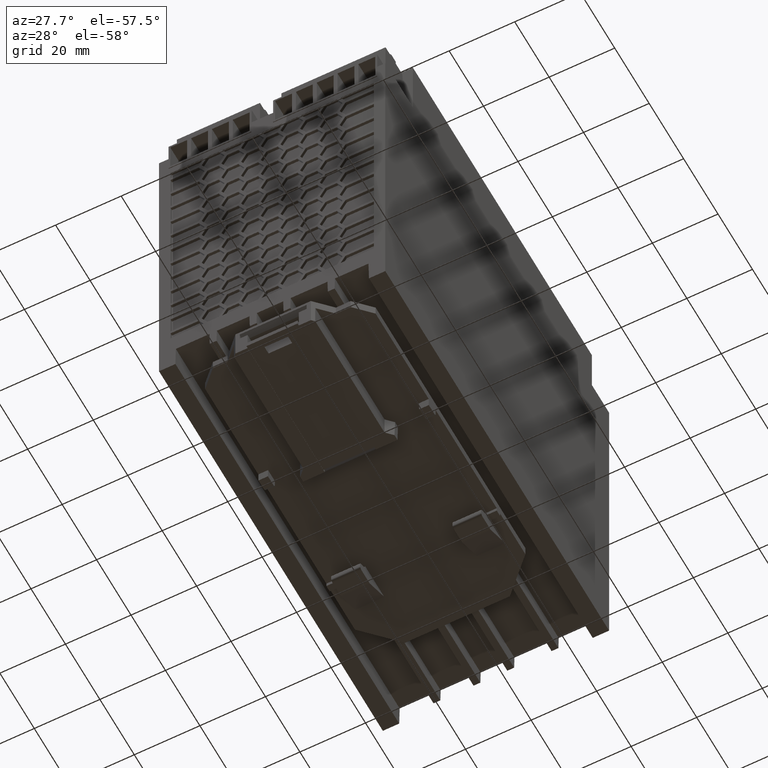
[diagram: clean part render]
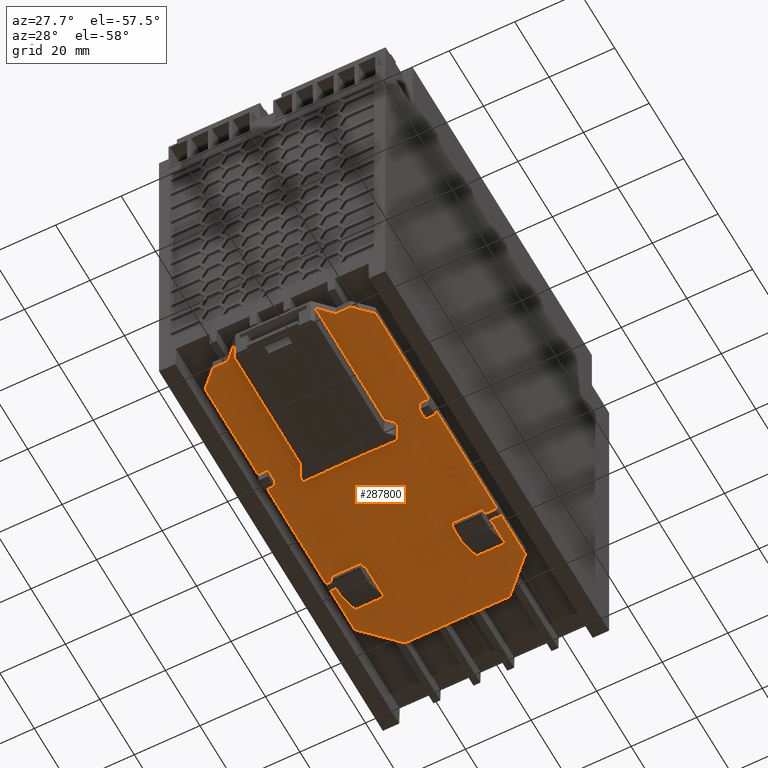
[diagram: same view with one face highlighted and labeled with its STEP entity id]
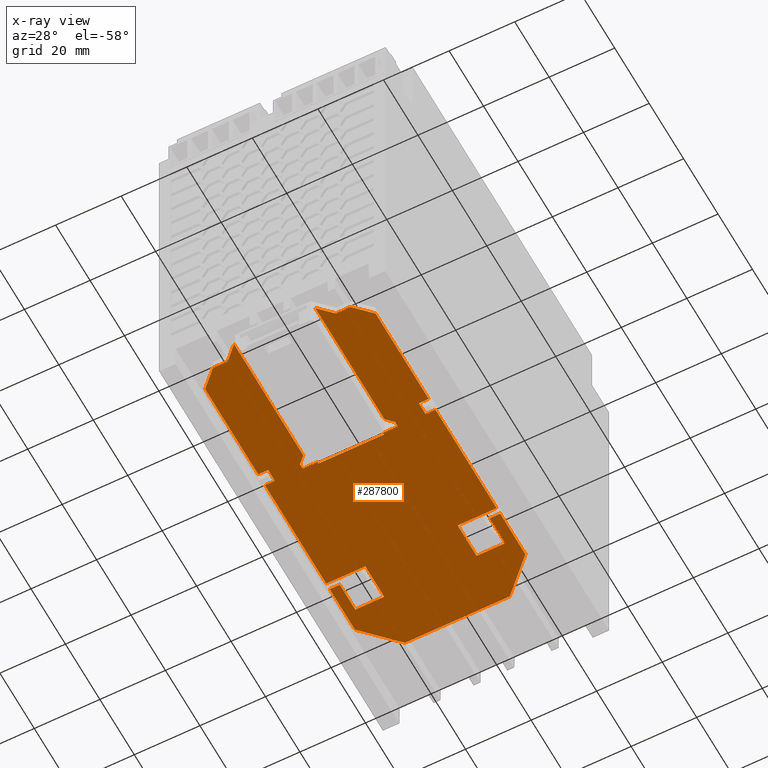
[diagram: x-ray of the same camera — body ghosted, the highlighted face saturated]
A machine part, auxiliary view. The second image highlights one B-rep face of the part: STEP entity #287800.
The next image is the same camera in x-ray: the body ghosted, the highlighted face saturated — about 0% of this face is hidden behind the body in this view.
In plain terms, the highlighted planar face has unit normal (0, 0, -1).
Its self-contained STEP definition (entity closure, byte-faithful):
#283920=CARTESIAN_POINT('',(-30.9067623437389,-56.5017569058464,
153.965843060292));
#283930=DIRECTION('',(0.,-1.,0.));
#283940=DIRECTION('',(-5.73515424626205E-20,0.,1.));
#283950=AXIS2_PLACEMENT_3D('',#283920,#283930,#283940);
#283960=PLANE('',#283950);
#284250=CARTESIAN_POINT('',(11.8911733980513,-56.5017569058464,
174.240843060292));
#284260=VERTEX_POINT('',#284250);
#284310=CARTESIAN_POINT('',(-72.2080416875504,-56.5017569058464,
174.240843060292));
#284320=DIRECTION('',(1.,0.,0.));
#284330=VECTOR('',#284320,1.);
#284340=LINE('',#284310,#284330);
#284350=CARTESIAN_POINT('',(13.5282511469976,-56.5017569058464,
174.240843060292));
#284360=VERTEX_POINT('',#284350);
#284370=EDGE_CURVE('',#284260,#284360,#284340,.T.);
#284630=CARTESIAN_POINT('',(-23.6088266019488,-56.5017569058464,
135.090843060292));
#284640=DIRECTION('',(-5.73515424626205E-20,0.,1.));
#284650=VECTOR('',#284640,1.);
#284660=LINE('',#284630,#284650);
#284670=CARTESIAN_POINT('',(-23.6088266019488,-56.5017569058464,
133.740843060292));
#284680=VERTEX_POINT('',#284670);
#284690=CARTESIAN_POINT('',(-23.6088266019488,-56.5017569058464,
145.65356773565));
#284700=VERTEX_POINT('',#284690);
#284710=EDGE_CURVE('',#284680,#284700,#284660,.T.);
#284720=ORIENTED_EDGE('',*,*,#284710,.F.);
#284730=CARTESIAN_POINT('',(-46.5603591758107,-56.5017569058464,
145.65356773565));
#284740=DIRECTION('',(-1.,0.,0.));
#284750=VECTOR('',#284740,1.);
#284760=LINE('',#284730,#284750);
#284770=CARTESIAN_POINT('',(-34.6088266019491,-56.5017569058464,
145.65356773565));
#284780=VERTEX_POINT('',#284770);
#284790=EDGE_CURVE('',#284700,#284780,#284760,.T.);
#284800=ORIENTED_EDGE('',*,*,#284790,.F.);
#284810=CARTESIAN_POINT('',(-34.6088266019491,-56.5017569058464,
135.090843060292));
#284820=DIRECTION('',(-5.73515424626205E-20,0.,1.));
#284830=VECTOR('',#284820,1.);
#284840=LINE('',#284810,#284830);
#284850=CARTESIAN_POINT('',(-34.608826601949,-56.5017569058464,
136.924343247015));
#284860=VERTEX_POINT('',#284850);
#284870=EDGE_CURVE('',#284860,#284780,#284840,.T.);
#284880=ORIENTED_EDGE('',*,*,#284870,.T.);
#284890=CARTESIAN_POINT('',(-46.5603591758106,-56.5017569058464,
136.924343247015));
#284900=DIRECTION('',(-1.,0.,0.));
#284910=VECTOR('',#284900,1.);
#284920=LINE('',#284890,#284910);
#284930=CARTESIAN_POINT('',(-25.6088266019486,-56.5017569058464,
136.924343247015));
#284940=VERTEX_POINT('',#284930);
#284950=EDGE_CURVE('',#284940,#284860,#284920,.T.);
#284960=ORIENTED_EDGE('',*,*,#284950,.T.);
#284970=CARTESIAN_POINT('',(-25.6088266019486,-56.5017569058464,
135.090843060292));
#284980=DIRECTION('',(5.73515424626205E-20,-0.,-1.));
#284990=VECTOR('',#284980,1.);
#285000=LINE('',#284970,#284990);
#285010=CARTESIAN_POINT('',(-25.6088266019486,-56.5017569058464,
133.740843060292));
#285020=VERTEX_POINT('',#285010);
#285030=EDGE_CURVE('',#284940,#285020,#285000,.T.);
#285040=ORIENTED_EDGE('',*,*,#285030,.F.);
#285050=CARTESIAN_POINT('',(-72.2080416875504,-56.5017569058464,
133.740843060292));
#285060=DIRECTION('',(1.,0.,0.));
#285070=VECTOR('',#285060,1.);
#285080=LINE('',#285050,#285070);
#285090=CARTESIAN_POINT('',(-40.2588266019494,-56.5017569058464,
133.740843060292));
#285100=VERTEX_POINT('',#285090);
#285110=EDGE_CURVE('',#285100,#285020,#285080,.T.);
#285120=ORIENTED_EDGE('',*,*,#285110,.T.);
#285130=CARTESIAN_POINT('',(-72.2080416875504,-56.5017569058464,
165.690058145892));
#285140=DIRECTION('',(0.707106781186554,-0.,-0.707106781186541));
#285150=VECTOR('',#285140,1.);
#285160=LINE('',#285130,#285150);
#285170=CARTESIAN_POINT('',(-50.2588266019489,-56.5017569058464,
143.740843060291));
#285180=VERTEX_POINT('',#285170);
#285190=EDGE_CURVE('',#285180,#285100,#285160,.T.);
#285200=ORIENTED_EDGE('',*,*,#285190,.T.);
#285210=CARTESIAN_POINT('',(-50.258826601949,-56.5017569058464,
194.740843060292));
#285220=DIRECTION('',(5.73515424626205E-20,-0.,-1.));
#285230=VECTOR('',#285220,1.);
#285240=LINE('',#285210,#285230);
#285250=CARTESIAN_POINT('',(-50.2588266019489,-56.5017569058464,
175.740843060292));
#285260=VERTEX_POINT('',#285250);
#285270=EDGE_CURVE('',#285260,#285180,#285240,.T.);
#285280=ORIENTED_EDGE('',*,*,#285270,.T.);
#285290=CARTESIAN_POINT('',(-72.2080416875504,-56.5017569058464,
153.791627974691));
#285300=DIRECTION('',(0.707106781186554,0.,0.707106781186541));
#285310=VECTOR('',#285300,1.);
#285320=LINE('',#285290,#285310);
#285330=CARTESIAN_POINT('',(-40.2588266019492,-56.5017569058464,
185.740843060292));
#285340=VERTEX_POINT('',#285330);
#285350=EDGE_CURVE('',#285260,#285340,#285320,.T.);
#285360=ORIENTED_EDGE('',*,*,#285350,.F.);
#285370=CARTESIAN_POINT('',(-16.6,-56.5017569058464,185.740843060292));
#285380=DIRECTION('',(-1.,2.76830659470822E-38,-5.73515424626205E-20));
#285390=VECTOR('',#285380,1.);
#285400=LINE('',#285370,#285390);
#285410=CARTESIAN_POINT('',(-25.6088266019486,-56.5017569058464,
185.740843060292));
#285420=VERTEX_POINT('',#285410);
#285430=EDGE_CURVE('',#285420,#285340,#285400,.T.);
#285440=ORIENTED_EDGE('',*,*,#285430,.T.);
#285450=CARTESIAN_POINT('',(-25.6088266019486,-56.5017569058464,
135.090843060292));
#285460=DIRECTION('',(5.73515424626205E-20,-0.,-1.));
#285470=VECTOR('',#285460,1.);
#285480=LINE('',#285450,#285470);
#285490=CARTESIAN_POINT('',(-25.6088266019486,-56.5017569058464,
182.653567735651));
#285500=VERTEX_POINT('',#285490);
#285510=EDGE_CURVE('',#285420,#285500,#285480,.T.);
#285520=ORIENTED_EDGE('',*,*,#285510,.F.);
#285530=CARTESIAN_POINT('',(-46.5603591758106,-56.5017569058464,
182.653567735651));
#285540=DIRECTION('',(-1.,0.,0.));
#285550=VECTOR('',#285540,1.);
#285560=LINE('',#285530,#285550);
#285570=CARTESIAN_POINT('',(-34.608826601949,-56.5017569058464,
182.653567735651));
#285580=VERTEX_POINT('',#285570);
#285590=EDGE_CURVE('',#285500,#285580,#285560,.T.);
#285600=ORIENTED_EDGE('',*,*,#285590,.F.);
#285610=CARTESIAN_POINT('',(-34.6088266019491,-56.5017569058464,
135.090843060292));
#285620=DIRECTION('',(-5.73515424626205E-20,0.,1.));
#285630=VECTOR('',#285620,1.);
#285640=LINE('',#285610,#285630);
#285650=CARTESIAN_POINT('',(-34.6088266019491,-56.5017569058464,
173.828118384933));
#285660=VERTEX_POINT('',#285650);
#285670=EDGE_CURVE('',#285660,#285580,#285640,.T.);
#285680=ORIENTED_EDGE('',*,*,#285670,.T.);
#285690=CARTESIAN_POINT('',(-46.5603591758107,-56.5017569058464,
173.828118384933));
#285700=DIRECTION('',(-1.,0.,0.));
#285710=VECTOR('',#285700,1.);
#285720=LINE('',#285690,#285710);
#285730=CARTESIAN_POINT('',(-23.6088266019488,-56.5017569058464,
173.828118384933));
#285740=VERTEX_POINT('',#285730);
#285750=EDGE_CURVE('',#285740,#285660,#285720,.T.);
#285760=ORIENTED_EDGE('',*,*,#285750,.T.);
#285770=CARTESIAN_POINT('',(-23.6088266019488,-56.5017569058464,
135.090843060292));
#285780=DIRECTION('',(5.73515424626205E-20,-0.,-1.));
#285790=VECTOR('',#285780,1.);
#285800=LINE('',#285770,#285790);
#285810=CARTESIAN_POINT('',(-23.6088266019488,-56.5017569058464,
185.740843060292));
#285820=VERTEX_POINT('',#285810);
#285830=EDGE_CURVE('',#285820,#285740,#285800,.T.);
#285840=ORIENTED_EDGE('',*,*,#285830,.T.);
#285850=CARTESIAN_POINT('',(11.8911733980513,-56.5017569058464,
185.740843060292));
#285860=VERTEX_POINT('',#285850);
#285870=EDGE_CURVE('',#285860,#285820,#285400,.T.);
#285880=ORIENTED_EDGE('',*,*,#285870,.T.);
#285890=CARTESIAN_POINT('',(11.8911733980514,-56.5017569058464,
124.740843060292));
#285900=DIRECTION('',(5.73515424626205E-20,-0.,-1.));
#285910=VECTOR('',#285900,1.);
#285920=LINE('',#285890,#285910);
#285930=CARTESIAN_POINT('',(11.8911733980513,-56.5017569058464,
182.740843060292));
#285940=VERTEX_POINT('',#285930);
#285950=EDGE_CURVE('',#285860,#285940,#285920,.T.);
#285960=ORIENTED_EDGE('',*,*,#285950,.F.);
#285970=CARTESIAN_POINT('',(-72.2080416875504,-56.5017569058464,
182.740843060292));
#285980=DIRECTION('',(-1.,0.,0.));
#285990=VECTOR('',#285980,1.);
#286000=LINE('',#285970,#285990);
#286010=CARTESIAN_POINT('',(15.8911733980512,-56.5017569058464,
182.740843060292));
#286020=VERTEX_POINT('',#286010);
#286030=EDGE_CURVE('',#286020,#285940,#286000,.T.);
#286040=ORIENTED_EDGE('',*,*,#286030,.T.);
#286050=CARTESIAN_POINT('',(15.9088394144973,-56.5017569058464,
124.740843060292));
#286060=DIRECTION('',(-0.000304586476321232,0.,0.999999953613538));
#286070=VECTOR('',#286060,1.);
#286080=LINE('',#286050,#286070);
#286090=CARTESIAN_POINT('',(15.8902596385798,-56.5017569058464,
185.740843060292));
#286100=VERTEX_POINT('',#286090);
#286110=EDGE_CURVE('',#286020,#286100,#286080,.T.);
#286120=ORIENTED_EDGE('',*,*,#286110,.F.);
#286130=CARTESIAN_POINT('',(46.7411733980517,-56.5017569058464,
185.740843060292));
#286140=VERTEX_POINT('',#286130);
#286150=EDGE_CURVE('',#286140,#286100,#285400,.T.);
#286160=ORIENTED_EDGE('',*,*,#286150,.T.);
#286170=CARTESIAN_POINT('',(107.741173398048,-56.5017569058464,
124.740843060292));
#286180=DIRECTION('',(0.707106781186529,-0.,-0.707106781186566));
#286190=VECTOR('',#286180,1.);
#286200=LINE('',#286170,#286190);
#286210=CARTESIAN_POINT('',(51.741173398051,-56.5017569058464,
180.740843060292));
#286220=VERTEX_POINT('',#286210);
#286230=EDGE_CURVE('',#286140,#286220,#286200,.T.);
#286240=ORIENTED_EDGE('',*,*,#286230,.F.);
#286250=CARTESIAN_POINT('',(51.741173398051,-56.5017569058464,
124.740843060292));
#286260=DIRECTION('',(5.73515424626205E-20,-0.,-1.));
#286270=VECTOR('',#286260,1.);
#286280=LINE('',#286250,#286270);
#286290=CARTESIAN_POINT('',(51.741173398051,-56.5017569058464,
176.240843060292));
#286300=VERTEX_POINT('',#286290);
#286310=EDGE_CURVE('',#286220,#286300,#286280,.T.);
#286320=ORIENTED_EDGE('',*,*,#286310,.F.);
#286330=CARTESIAN_POINT('',(103.241173398049,-56.5017569058464,
124.740843060292));
#286340=DIRECTION('',(0.707106781186535,-0.,-0.70710678118656));
#286350=VECTOR('',#286340,1.);
#286360=LINE('',#286330,#286350);
#286370=CARTESIAN_POINT('',(55.8563768265773,-56.5017569058464,
172.125639631765));
#286380=VERTEX_POINT('',#286370);
#286390=EDGE_CURVE('',#286300,#286380,#286360,.T.);
#286400=ORIENTED_EDGE('',*,*,#286390,.F.);
#286410=CARTESIAN_POINT('',(-72.2080416875504,-56.5017569058464,
172.125639631765));
#286420=DIRECTION('',(-1.,0.,0.));
#286430=VECTOR('',#286420,1.);
#286440=LINE('',#286410,#286430);
#286450=CARTESIAN_POINT('',(15.6434545755242,-56.5017569058464,
172.125639631765));
#286460=VERTEX_POINT('',#286450);
#286470=EDGE_CURVE('',#286380,#286460,#286440,.T.);
#286480=ORIENTED_EDGE('',*,*,#286470,.F.);
#286490=CARTESIAN_POINT('',(-72.2080416875504,-56.5017569058464,
259.977135894829));
#286500=DIRECTION('',(-0.707106781186593,0.,0.707106781186502));
#286510=VECTOR('',#286500,1.);
#286520=LINE('',#286490,#286510);
#286530=EDGE_CURVE('',#286460,#284360,#286520,.T.);
#286540=ORIENTED_EDGE('',*,*,#286530,.F.);
#286550=ORIENTED_EDGE('',*,*,#284370,.T.);
#286560=CARTESIAN_POINT('',(11.8911733980513,-56.5017569058464,
124.740843060292));
#286570=DIRECTION('',(-5.73515424626205E-20,0.,1.));
#286580=VECTOR('',#286570,1.);
#286590=LINE('',#286560,#286580);
#286600=CARTESIAN_POINT('',(11.8911733980513,-56.5017569058464,
169.740843060292));
#286610=VERTEX_POINT('',#286600);
#286620=EDGE_CURVE('',#286610,#284260,#286590,.T.);
#286630=ORIENTED_EDGE('',*,*,#286620,.T.);
#286640=CARTESIAN_POINT('',(-72.2080416875504,-56.5017569058464,
169.740843060292));
#286650=DIRECTION('',(-1.,0.,0.));
#286660=VECTOR('',#286650,1.);
#286670=LINE('',#286640,#286660);
#286680=CARTESIAN_POINT('',(11.3911733980511,-56.5017569058464,
169.740843060292));
#286690=VERTEX_POINT('',#286680);
#286700=EDGE_CURVE('',#286610,#286690,#286670,.T.);
#286710=ORIENTED_EDGE('',*,*,#286700,.F.);
#286720=CARTESIAN_POINT('',(11.3911733980511,-56.5017569058464,
181.040843060292));
#286730=DIRECTION('',(5.73515424626205E-20,-0.,-1.));
#286740=VECTOR('',#286730,1.);
#286750=LINE('',#286720,#286740);
#286760=CARTESIAN_POINT('',(11.3911733980511,-56.5017569058464,
149.740843060292));
#286770=VERTEX_POINT('',#286760);
#286780=EDGE_CURVE('',#286690,#286770,#286750,.T.);
#286790=ORIENTED_EDGE('',*,*,#286780,.F.);
#286800=CARTESIAN_POINT('',(-72.2080416875504,-56.5017569058464,
149.740843060292));
#286810=DIRECTION('',(-1.,0.,0.));
#286820=VECTOR('',#286810,1.);
#286830=LINE('',#286800,#286820);
#286840=CARTESIAN_POINT('',(11.8911733980513,-56.5017569058464,
149.740843060292));
#286850=VERTEX_POINT('',#286840);
#286860=EDGE_CURVE('',#286850,#286770,#286830,.T.);
#286870=ORIENTED_EDGE('',*,*,#286860,.T.);
#286880=CARTESIAN_POINT('',(11.8911733980513,-56.5017569058464,
194.740843060292));
#286890=DIRECTION('',(5.73515424626205E-20,-0.,-1.));
#286900=VECTOR('',#286890,1.);
#286910=LINE('',#286880,#286900);
#286920=CARTESIAN_POINT('',(11.8911733980513,-56.5017569058464,
145.240843060291));
#286930=VERTEX_POINT('',#286920);
#286940=EDGE_CURVE('',#286850,#286930,#286910,.T.);
#286950=ORIENTED_EDGE('',*,*,#286940,.F.);
#286960=CARTESIAN_POINT('',(-72.2080416875504,-56.5017569058464,
145.240843060291));
#286970=DIRECTION('',(1.,0.,0.));
#286980=VECTOR('',#286970,1.);
#286990=LINE('',#286960,#286980);
#287000=CARTESIAN_POINT('',(13.5282511469976,-56.5017569058464,
145.240843060291));
#287010=VERTEX_POINT('',#287000);
#287020=EDGE_CURVE('',#286930,#287010,#286990,.T.);
#287030=ORIENTED_EDGE('',*,*,#287020,.F.);
#287040=CARTESIAN_POINT('',(-72.2080416875504,-56.5017569058464,
59.5045502257543));
#287050=DIRECTION('',(-0.707106781186593,0.,-0.707106781186502));
#287060=VECTOR('',#287050,1.);
#287070=LINE('',#287040,#287060);
#287080=CARTESIAN_POINT('',(15.6434545755243,-56.5017569058464,
147.356046488818));
#287090=VERTEX_POINT('',#287080);
#287100=EDGE_CURVE('',#287090,#287010,#287070,.T.);
#287110=ORIENTED_EDGE('',*,*,#287100,.T.);
#287120=CARTESIAN_POINT('',(-72.2080416875504,-56.5017569058464,
147.356046488818));
#287130=DIRECTION('',(-1.,0.,0.));
#287140=VECTOR('',#287130,1.);
#287150=LINE('',#287120,#287140);
#287160=CARTESIAN_POINT('',(55.8563768265773,-56.5017569058464,
147.356046488818));
#287170=VERTEX_POINT('',#287160);
#287180=EDGE_CURVE('',#287170,#287090,#287150,.T.);
#287190=ORIENTED_EDGE('',*,*,#287180,.T.);
#287200=CARTESIAN_POINT('',(103.241173398049,-56.5017569058464,
194.740843060292));
#287210=DIRECTION('',(0.707106781186535,0.,0.70710678118656));
#287220=VECTOR('',#287210,1.);
#287230=LINE('',#287200,#287220);
#287240=CARTESIAN_POINT('',(51.741173398051,-56.5017569058464,
143.240843060291));
#287250=VERTEX_POINT('',#287240);
#287260=EDGE_CURVE('',#287250,#287170,#287230,.T.);
#287270=ORIENTED_EDGE('',*,*,#287260,.T.);
#287280=CARTESIAN_POINT('',(51.741173398051,-56.5017569058464,
194.740843060292));
#287290=DIRECTION('',(-5.73515424626205E-20,0.,1.));
#287300=VECTOR('',#287290,1.);
#287310=LINE('',#287280,#287300);
#287320=CARTESIAN_POINT('',(51.741173398051,-56.5017569058464,
138.740843060291));
#287330=VERTEX_POINT('',#287320);
#287340=EDGE_CURVE('',#287330,#287250,#287310,.T.);
#287350=ORIENTED_EDGE('',*,*,#287340,.T.);
#287360=CARTESIAN_POINT('',(107.741173398048,-56.5017569058464,
194.740843060292));
#287370=DIRECTION('',(0.707106781186529,0.,0.707106781186566));
#287380=VECTOR('',#287370,1.);
#287390=LINE('',#287360,#287380);
#287400=CARTESIAN_POINT('',(46.7411733980517,-56.5017569058464,
133.740843060292));
#287410=VERTEX_POINT('',#287400);
#287420=EDGE_CURVE('',#287410,#287330,#287390,.T.);
#287430=ORIENTED_EDGE('',*,*,#287420,.T.);
#287440=CARTESIAN_POINT('',(-72.2080416875504,-56.5017569058464,
133.740843060292));
#287450=DIRECTION('',(1.,0.,0.));
#287460=VECTOR('',#287450,1.);
#287470=LINE('',#287440,#287460);
#287480=CARTESIAN_POINT('',(15.8902596385798,-56.5017569058464,
133.740843060292));
#287490=VERTEX_POINT('',#287480);
#287500=EDGE_CURVE('',#287490,#287410,#287470,.T.);
#287510=ORIENTED_EDGE('',*,*,#287500,.T.);
#287520=CARTESIAN_POINT('',(15.8902596385798,-56.5017569058464,
135.090843060292));
#287530=DIRECTION('',(5.73515424626205E-20,-0.,-1.));
#287540=VECTOR('',#287530,1.);
#287550=LINE('',#287520,#287540);
#287560=CARTESIAN_POINT('',(15.8902596385798,-56.5017569058464,
136.740843060291));
#287570=VERTEX_POINT('',#287560);
#287580=EDGE_CURVE('',#287570,#287490,#287550,.T.);
#287590=ORIENTED_EDGE('',*,*,#287580,.T.);
#287600=CARTESIAN_POINT('',(-72.2080416875504,-56.5017569058464,
136.740843060291));
#287610=DIRECTION('',(-1.,0.,0.));
#287620=VECTOR('',#287610,1.);
#287630=LINE('',#287600,#287620);
#287640=CARTESIAN_POINT('',(11.8911733980513,-56.5017569058464,
136.740843060291));
#287650=VERTEX_POINT('',#287640);
#287660=EDGE_CURVE('',#287570,#287650,#287630,.T.);
#287670=ORIENTED_EDGE('',*,*,#287660,.F.);
#287680=CARTESIAN_POINT('',(11.8911733980514,-56.5017569058464,
194.740843060292));
#287690=DIRECTION('',(-5.73515424626205E-20,0.,1.));
#287700=VECTOR('',#287690,1.);
#287710=LINE('',#287680,#287700);
#287720=CARTESIAN_POINT('',(11.8911733980513,-56.5017569058464,
133.740843060292));
#287730=VERTEX_POINT('',#287720);
#287740=EDGE_CURVE('',#287730,#287650,#287710,.T.);
#287750=ORIENTED_EDGE('',*,*,#287740,.T.);
#287760=EDGE_CURVE('',#284680,#287730,#285080,.T.);
#287770=ORIENTED_EDGE('',*,*,#287760,.T.);
#287780=EDGE_LOOP('',(#287770,#287750,#287670,#287590,#287510,#287430,
#287350,#287270,#287190,#287110,#287030,#286950,#286870,#286790,#286710,
#286630,#286550,#286540,#286480,#286400,#286320,#286240,#286160,#286120,
#286040,#285960,#285880,#285840,#285760,#285680,#285600,#285520,#285440,
#285360,#285280,#285200,#285120,#285040,#284960,#284880,#284800,#284720)
);
#287790=FACE_OUTER_BOUND('',#287780,.T.);
#287800=ADVANCED_FACE('',(#287790),#283960,.T.);